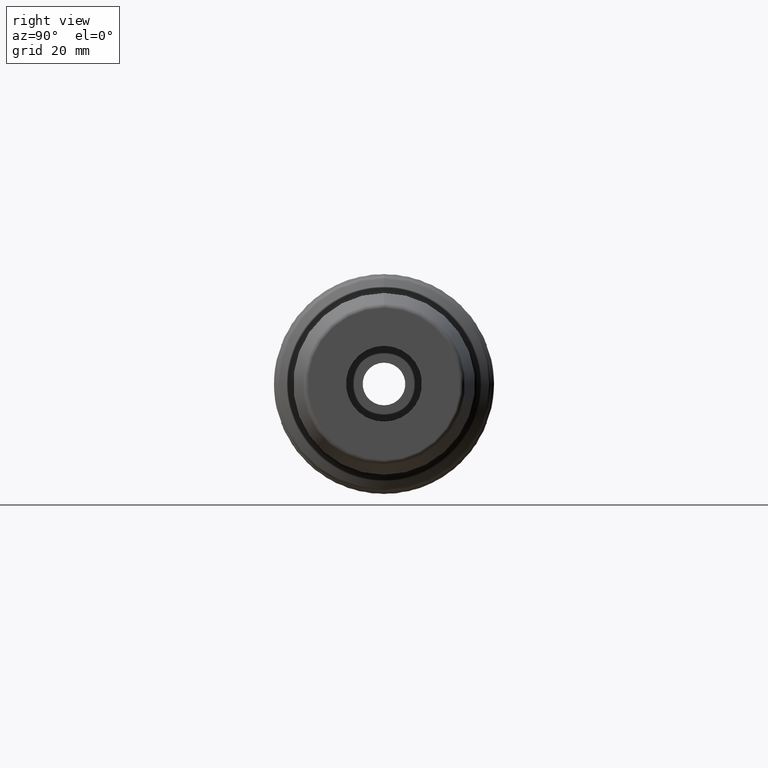
[diagram: clean part render]
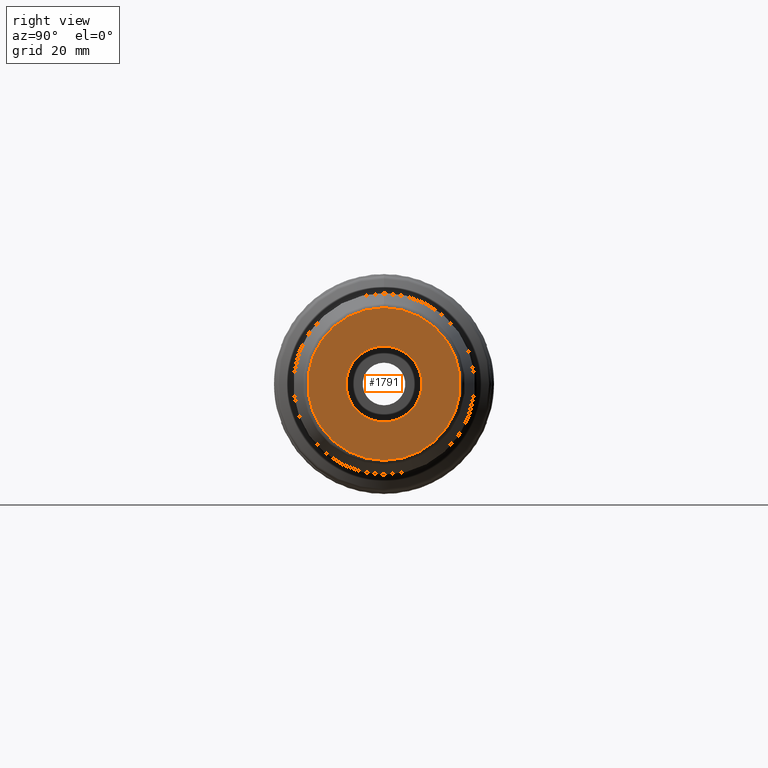
[diagram: same view with one face highlighted and labeled with its STEP entity id]
A machine part, right view. The second image highlights one B-rep face of the part: STEP entity #1791.
In plain terms, the highlighted planar face has unit normal (1, 0, 0).
Its self-contained STEP definition (entity closure, byte-faithful):
#19=PLANE('',#1921);
#97=FACE_BOUND('',#209,.T.);
#111=FACE_OUTER_BOUND('',#208,.T.);
#208=EDGE_LOOP('',(#1191,#1192));
#209=EDGE_LOOP('',(#1193,#1194));
#495=CIRCLE('',#1913,15.9609003688227);
#499=CIRCLE('',#1917,15.9609003688227);
#502=CIRCLE('',#1922,7.9375);
#503=CIRCLE('',#1923,7.9375);
#670=VERTEX_POINT('',#2933);
#671=VERTEX_POINT('',#2934);
#676=VERTEX_POINT('',#2949);
#677=VERTEX_POINT('',#2950);
#876=EDGE_CURVE('',#670,#671,#495,.T.);
#880=EDGE_CURVE('',#671,#670,#499,.T.);
#884=EDGE_CURVE('',#676,#677,#502,.T.);
#885=EDGE_CURVE('',#677,#676,#503,.T.);
#1191=ORIENTED_EDGE('',*,*,#876,.F.);
#1192=ORIENTED_EDGE('',*,*,#880,.F.);
#1193=ORIENTED_EDGE('',*,*,#884,.F.);
#1194=ORIENTED_EDGE('',*,*,#885,.F.);
#1791=ADVANCED_FACE('',(#111,#97),#19,.T.);
#1913=AXIS2_PLACEMENT_3D('',#2935,#2210,#2211);
#1917=AXIS2_PLACEMENT_3D('',#2941,#2218,#2219);
#1921=AXIS2_PLACEMENT_3D('',#2948,#2227,#2228);
#1922=AXIS2_PLACEMENT_3D('',#2951,#2229,#2230);
#1923=AXIS2_PLACEMENT_3D('',#2952,#2231,#2232);
#2210=DIRECTION('center_axis',(-1.,0.,0.));
#2211=DIRECTION('ref_axis',(0.,1.22464679914735E-16,1.));
#2218=DIRECTION('center_axis',(-1.,0.,0.));
#2219=DIRECTION('ref_axis',(0.,1.22464679914735E-16,1.));
#2227=DIRECTION('center_axis',(1.,0.,0.));
#2228=DIRECTION('ref_axis',(0.,0.,-1.));
#2229=DIRECTION('center_axis',(1.,0.,0.));
#2230=DIRECTION('ref_axis',(0.,0.,-1.));
#2231=DIRECTION('center_axis',(1.,0.,0.));
#2232=DIRECTION('ref_axis',(0.,0.,-1.));
#2933=CARTESIAN_POINT('',(90.,-3.90929310963771E-15,-15.9609003688227));
#2934=CARTESIAN_POINT('',(90.,-1.95464655481886E-15,15.9609003688227));
#2935=CARTESIAN_POINT('Origin',(90.,0.,0.));
#2941=CARTESIAN_POINT('Origin',(90.,0.,0.));
#2948=CARTESIAN_POINT('Origin',(90.,0.,-7.9375));
#2949=CARTESIAN_POINT('',(90.,0.,-7.9375));
#2950=CARTESIAN_POINT('',(90.,-9.72063396823212E-16,7.9375));
#2951=CARTESIAN_POINT('Origin',(90.,0.,0.));
#2952=CARTESIAN_POINT('Origin',(90.,0.,0.));